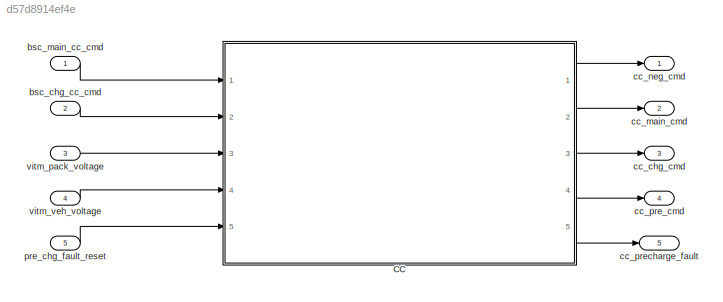
MODEL slx_d57d8914ef4e
KIND model
CONFIG AbsTol = auto
CONFIG FixedStep = 0.01
CONFIG MaxStep = auto
CONFIG MinStep = auto
CONFIG RelTol = 1e-3
CONFIG SampleTimeConstraint = Unconstrained
CONFIG Solver = FixedStepAuto
CONFIG SolverMode = Auto
CONFIG SolverName = FixedStepAuto
CONFIG StartTime = 0.0
CONFIG StopTime = inf
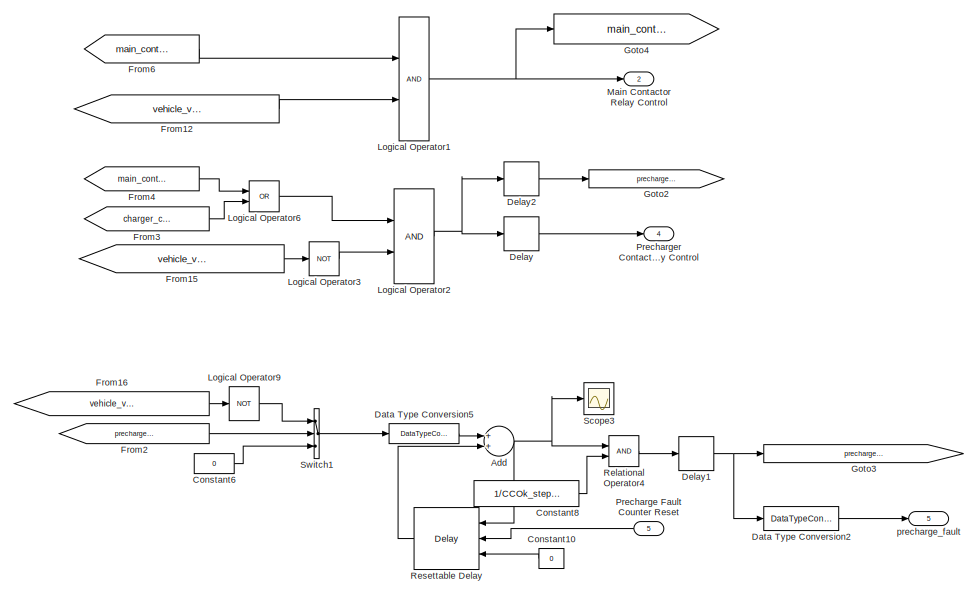
[diagram: CC - part 1/2, right side, full height]
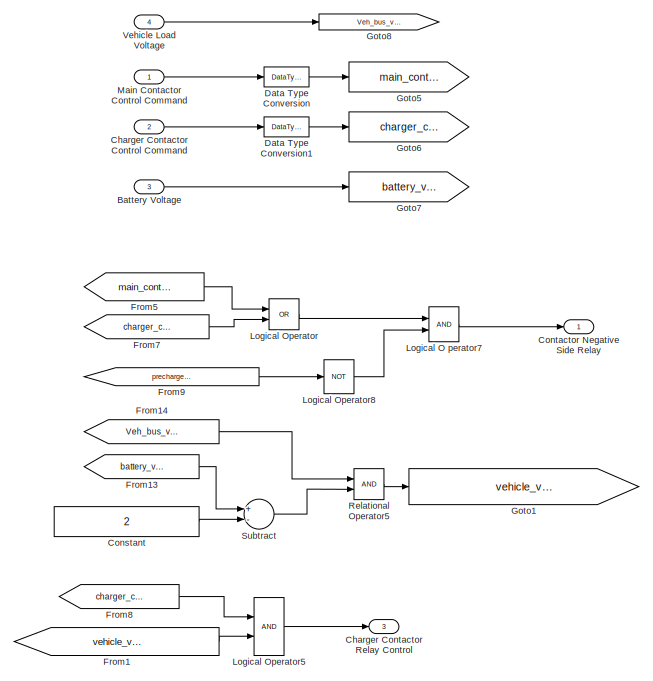
[diagram: CC - part 2/2, left side, full height]
BLOCK [SubSystem] CC
  Ports = [5, 5]
  RequestExecContextInheritance = off
  TreatAsAtomicUnit = on
  Variant = off
BLOCK [Sum] CC/Add
  AccumDataTypeStr = uint16
  InputSameDT = off
  OutDataTypeStr = Inherit: Inherit via internal rule
  Ports = [2, 1]
  SaturateOnIntegerOverflow = off
BLOCK [Inport] CC/Battery Voltage
  IconDisplay = Port number
  Port = 3
BLOCK [Inport] CC/Charger Contactor Control Command
  IconDisplay = Port number
  OutDataTypeStr = boolean
  Port = 2
BLOCK [Outport] CC/Charger Contactor Relay Control
  IconDisplay = Port number
  Port = 3
BLOCK [Constant] CC/Constant
  Value = 2
BLOCK [Constant] CC/Constant10
  OutDataTypeStr = Inherit: Inherit via back propagation
  Value = 0
BLOCK [Constant] CC/Constant6
  Value = 0
BLOCK [Constant] CC/Constant8
  SampleTime = -1
  Value = 1/CCOk_stepSize
BLOCK [Outport] CC/Contactor Negative Side Relay 
  IconDisplay = Port number
BLOCK [DataTypeConversion] CC/Data Type Conversion
  OutDataTypeStr = boolean
  RndMeth = Floor
  SaturateOnIntegerOverflow = off
BLOCK [DataTypeConversion] CC/Data Type Conversion1
  OutDataTypeStr = boolean
  RndMeth = Floor
  SaturateOnIntegerOverflow = off
BLOCK [DataTypeConversion] CC/Data Type Conversion2
  OutDataTypeStr = uint8
  RndMeth = Floor
  SaturateOnIntegerOverflow = off
BLOCK [DataTypeConversion] CC/Data Type Conversion5
  RndMeth = Floor
  SaturateOnIntegerOverflow = off
BLOCK [Delay] CC/Delay
  DelayLength = 1
  InputPortMap = u0
  Ports = [1, 1]
BLOCK [Delay] CC/Delay1
  DelayLength = 1
  InputPortMap = u0
  Ports = [1, 1]
BLOCK [Delay] CC/Delay2
  DelayLength = 1
  InputPortMap = u0
  Ports = [1, 1]
BLOCK [From] CC/From1
  GotoTag = vehicle_voltage_reached_bat_voltage
BLOCK [From] CC/From12
  GotoTag = vehicle_voltage_reached_bat_voltage
BLOCK [From] CC/From13
  GotoTag = battery_voltage
BLOCK [From] CC/From14
  GotoTag = Veh_bus_voltage
BLOCK [From] CC/From15
  GotoTag = vehicle_voltage_reached_bat_voltage
BLOCK [From] CC/From16
  GotoTag = vehicle_voltage_reached_bat_voltage
BLOCK [From] CC/From2
  GotoTag = precharger_relay_status
BLOCK [From] CC/From3
  GotoTag = charger_contactor_cmd
BLOCK [From] CC/From4
  GotoTag = main_contactor_cmd
BLOCK [From] CC/From5
  GotoTag = main_contactor_cmd
BLOCK [From] CC/From6
  GotoTag = main_contactor_cmd
BLOCK [From] CC/From7
  GotoTag = charger_contactor_cmd
BLOCK [From] CC/From8
  GotoTag = charger_contactor_cmd
BLOCK [From] CC/From9
  GotoTag = precharger_electric_circuit_fault
BLOCK [Goto] CC/Goto1
  GotoTag = vehicle_voltage_reached_bat_voltage
BLOCK [Goto] CC/Goto2
  GotoTag = precharger_relay_status
BLOCK [Goto] CC/Goto3
  GotoTag = precharger_electric_circuit_fault
BLOCK [Goto] CC/Goto4
  GotoTag = main_contactor_relay_state
BLOCK [Goto] CC/Goto5
  GotoTag = main_contactor_cmd
BLOCK [Goto] CC/Goto6
  GotoTag = charger_contactor_cmd
BLOCK [Goto] CC/Goto7
  GotoTag = battery_voltage
BLOCK [Goto] CC/Goto8
  GotoTag = Veh_bus_voltage
BLOCK [Logic] CC/Logical O perator7
  AllPortsSameDT = off
  OutDataTypeStr = boolean
  Ports = [2, 1]
BLOCK [Logic] CC/Logical Operator
  AllPortsSameDT = off
  Operator = OR
  OutDataTypeStr = boolean
  Ports = [2, 1]
BLOCK [Logic] CC/Logical Operator1
  AllPortsSameDT = off
  OutDataTypeStr = boolean
  Ports = [2, 1]
BLOCK [Logic] CC/Logical Operator2
  AllPortsSameDT = off
  OutDataTypeStr = boolean
  Ports = [2, 1]
BLOCK [Logic] CC/Logical Operator3
  AllPortsSameDT = off
  Operator = NOT
  OutDataTypeStr = boolean
  Ports = [1, 1]
BLOCK [Logic] CC/Logical Operator5
  AllPortsSameDT = off
  OutDataTypeStr = boolean
  Ports = [2, 1]
BLOCK [Logic] CC/Logical Operator6
  AllPortsSameDT = off
  Operator = OR
  OutDataTypeStr = boolean
  Ports = [2, 1]
BLOCK [Logic] CC/Logical Operator8
  AllPortsSameDT = off
  Operator = NOT
  OutDataTypeStr = boolean
  Ports = [1, 1]
BLOCK [Logic] CC/Logical Operator9
  AllPortsSameDT = off
  Operator = NOT
  OutDataTypeStr = boolean
  Ports = [1, 1]
BLOCK [Inport] CC/Main Contactor Control Command
  IconDisplay = Port number
  OutDataTypeStr = boolean
BLOCK [Outport] CC/Main Contactor Relay Control 
  IconDisplay = Port number
  Port = 2
BLOCK [Inport] CC/Precharge Fault Counter Reset
  IconDisplay = Port number
  Port = 5
BLOCK [Outport] CC/Precharger Contactor Relay Control 
  IconDisplay = Port number
  Port = 4
BLOCK [RelationalOperator] CC/Relational Operator4
  InputSameDT = off
  OutDataTypeStr = boolean
  Ports = [2, 1]
BLOCK [RelationalOperator] CC/Relational Operator5
  InputSameDT = off
  OutDataTypeStr = boolean
  Ports = [2, 1]
BLOCK [Delay] CC/Resettable Delay
  DelayLength = 1
  ExternalReset = Rising
  InitialConditionSource = Input port
  InputPortMap = u0,r5,p4
  Ports = [3, 1]
BLOCK [Scope] CC/Scope3
  Ports = [1]
  ScopeSpecificationString = Simulink.scopes.TimeScopeBlockCfg('CurrentConfiguration', extmgr.ConfigurationSet(extmgr.Configuration('Core','General UI',true),extmgr.Configuration('Core','Source UI',true),extmgr.Configuration('Sources','WiredSimulink',true,'DataLoggingVariableName','ScopeData3'),extmgr.Configuration('Visuals','Time Domain',true,'SerializedDisplays',{struct('MinYLimReal','-8.75','MaxYLimReal','78.75','YLabelRea...<+1373ch>
BLOCK [Sum] CC/Subtract
  InputSameDT = off
  Inputs = +-
  OutDataTypeStr = Inherit: Inherit via internal rule
  Ports = [2, 1]
  SaturateOnIntegerOverflow = off
BLOCK [Switch] CC/Switch1
  Criteria = u2 > Threshold
  InputSameDT = off
  SaturateOnIntegerOverflow = off
  Threshold = 0.5
BLOCK [Inport] CC/Vehicle Load Voltage
  IconDisplay = Port number
  Port = 4
BLOCK [Outport] CC/precharge_fault
  IconDisplay = Port number
  Port = 5
BLOCK [Inport] bsc_chg_cc_cmd
  IconDisplay = Port number
  OutDataTypeStr = boolean
  Port = 2
BLOCK [Inport] bsc_main_cc_cmd
  IconDisplay = Port number
  OutDataTypeStr = boolean
BLOCK [Outport] cc_chg_cmd
  IconDisplay = Port number
  Port = 3
BLOCK [Outport] cc_main_cmd
  IconDisplay = Port number
  Port = 2
BLOCK [Outport] cc_neg_cmd
  IconDisplay = Port number
BLOCK [Outport] cc_pre_cmd
  IconDisplay = Port number
  Port = 4
BLOCK [Outport] cc_precharge_fault
  IconDisplay = Port number
  Port = 5
BLOCK [Inport] pre_chg_fault_reset
  IconDisplay = Port number
  Port = 5
BLOCK [Inport] vitm_pack_voltage
  IconDisplay = Port number
  Port = 3
BLOCK [Inport] vitm_veh_voltage
  IconDisplay = Port number
  Port = 4
NET CC/Add:1 -> CC/Relational Operator4:1, CC/Resettable Delay:1, CC/Scope3:1
LINE CC/Battery Voltage:1 -> CC/Goto7:1
LINE CC/Charger Contactor Control Command:1 -> CC/Data Type Conversion1:1
LINE CC/Constant10:1 -> CC/Resettable Delay:3
LINE CC/Constant6:1 -> CC/Switch1:3
LINE CC/Constant8:1 -> CC/Relational Operator4:2
LINE CC/Constant:1 -> CC/Subtract:2
LINE CC/Data Type Conversion1:1 -> CC/Goto6:1
LINE CC/Data Type Conversion2:1 -> CC/precharge_fault:1
LINE CC/Data Type Conversion5:1 -> CC/Add:1
LINE CC/Data Type Conversion:1 -> CC/Goto5:1
NET CC/Delay1:1 -> CC/Data Type Conversion2:1, CC/Goto3:1
LINE CC/Delay2:1 -> CC/Goto2:1
LINE CC/Delay:1 -> CC/Precharger Contactor Relay Control :1
LINE CC/From12:1 -> CC/Logical Operator1:2
LINE CC/From13:1 -> CC/Subtract:1
LINE CC/From14:1 -> CC/Relational Operator5:1
LINE CC/From15:1 -> CC/Logical Operator3:1
LINE CC/From16:1 -> CC/Logical Operator9:1
LINE CC/From1:1 -> CC/Logical Operator5:2
LINE CC/From2:1 -> CC/Switch1:2
LINE CC/From3:1 -> CC/Logical Operator6:2
LINE CC/From4:1 -> CC/Logical Operator6:1
LINE CC/From5:1 -> CC/Logical Operator:1
LINE CC/From6:1 -> CC/Logical Operator1:1
LINE CC/From7:1 -> CC/Logical Operator:2
LINE CC/From8:1 -> CC/Logical Operator5:1
LINE CC/From9:1 -> CC/Logical Operator8:1
LINE CC/Logical O perator7:1 -> CC/Contactor Negative Side Relay :1
NET CC/Logical Operator1:1 -> CC/Goto4:1, CC/Main Contactor Relay Control :1
NET CC/Logical Operator2:1 -> CC/Delay2:1, CC/Delay:1
LINE CC/Logical Operator3:1 -> CC/Logical Operator2:2
LINE CC/Logical Operator5:1 -> CC/Charger Contactor Relay Control:1
LINE CC/Logical Operator6:1 -> CC/Logical Operator2:1
LINE CC/Logical Operator8:1 -> CC/Logical O perator7:2
LINE CC/Logical Operator9:1 -> CC/Switch1:1
LINE CC/Logical Operator:1 -> CC/Logical O perator7:1
LINE CC/Main Contactor Control Command:1 -> CC/Data Type Conversion:1
LINE CC/Precharge Fault Counter Reset:1 -> CC/Resettable Delay:2
LINE CC/Relational Operator4:1 -> CC/Delay1:1
LINE CC/Relational Operator5:1 -> CC/Goto1:1
LINE CC/Resettable Delay:1 -> CC/Add:2
LINE CC/Subtract:1 -> CC/Relational Operator5:2
LINE CC/Switch1:1 -> CC/Data Type Conversion5:1
LINE CC/Vehicle Load Voltage:1 -> CC/Goto8:1
LINE CC:1 -> cc_neg_cmd:1
LINE CC:2 -> cc_main_cmd:1
LINE CC:3 -> cc_chg_cmd:1
LINE CC:4 -> cc_pre_cmd:1
LINE CC:5 -> cc_precharge_fault:1
LINE bsc_chg_cc_cmd:1 -> CC:2
LINE bsc_main_cc_cmd:1 -> CC:1
LINE pre_chg_fault_reset:1 -> CC:5
LINE vitm_pack_voltage:1 -> CC:3
LINE vitm_veh_voltage:1 -> CC:4
note: NET lines group one-source signal fan-out (src -> all destinations, sorted); 1:1 wires keep LINE
